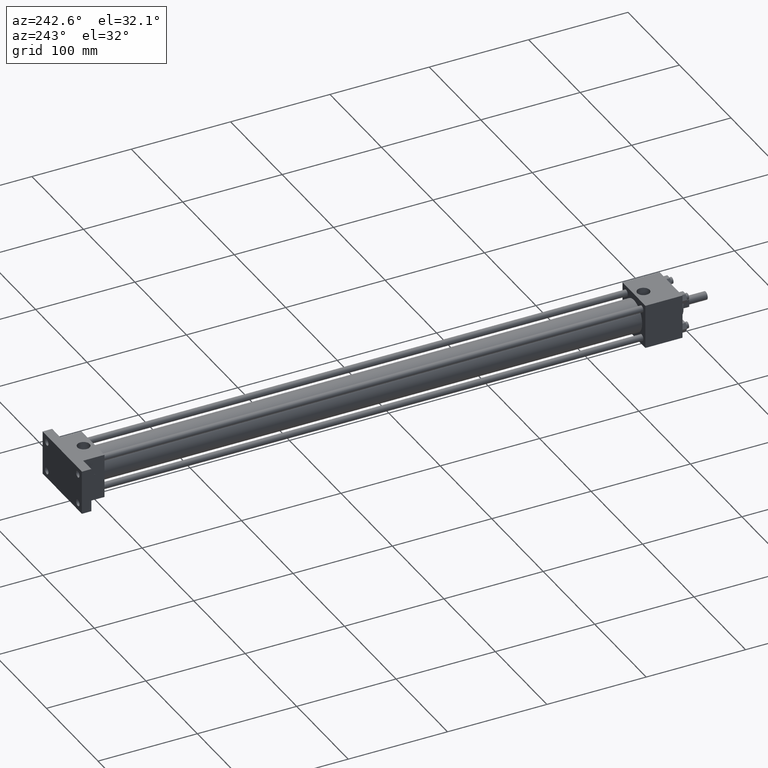
[diagram: clean part render]
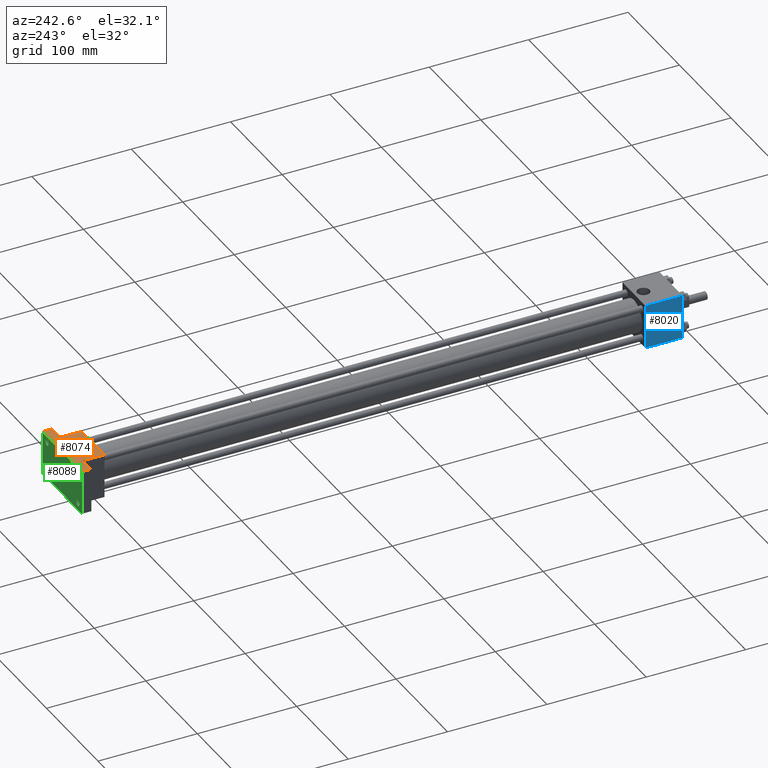
[diagram: same view with three faces highlighted in distinct colors, each labeled with its STEP entity id]
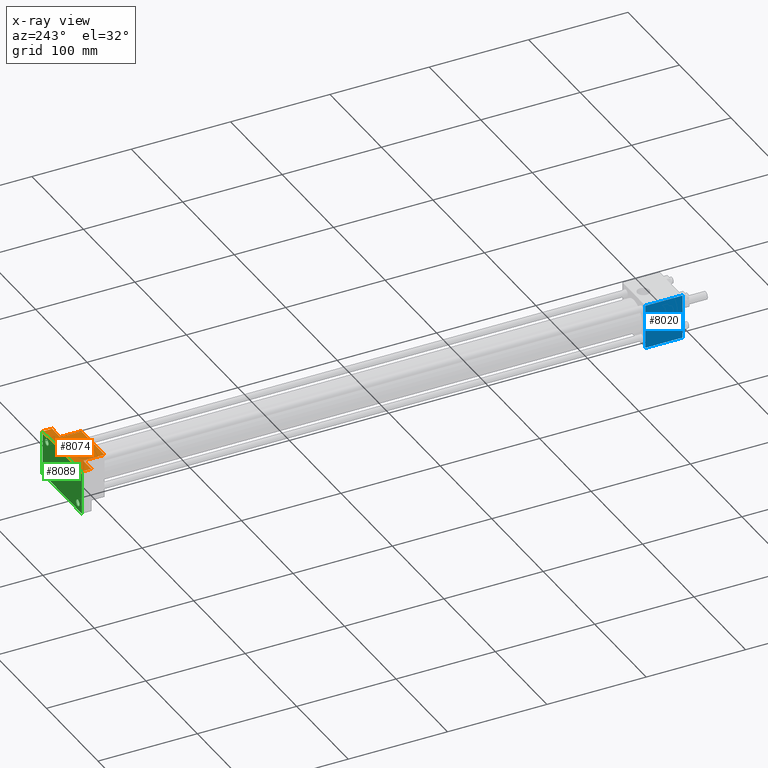
[diagram: x-ray of the same camera — body ghosted, the three highlighted faces saturated]
A machine part, auxiliary view with three faces highlighted in distinct colors.
The next image is the same camera in x-ray (body ghosted, the three faces saturated) — at least one of them is partly hidden behind the body in this view.
Their STEP definitions:

[orange] entity #8074 — the highlighted planar face has unit normal (0, 0, 1).
#3439=VERTEX_POINT('',#3440);
#3440=CARTESIAN_POINT('',(2.222500000E+001,5.976937500E+002,2.222500000E+001));
#3441=EDGE_CURVE('',#3439,#3446,#3442,.T.);
#3442=LINE('',#3443,#3444);
#3443=CARTESIAN_POINT('',(2.222500000E+001,5.976937500E+002,2.222500000E+001));
#3444=VECTOR('',#3445,1.0E+000);
#3445=DIRECTION('',(-1.0E+000,0.0E+000,0.0E+000));
#3446=VERTEX_POINT('',#3447);
#3447=CARTESIAN_POINT('',(-2.222500000E+001,5.976937500E+002,2.222500000E+001));
#3555=FACE_OUTER_BOUND('',#3557,.T.);
#3556=FACE_BOUND('',#3558,.T.);
#3557=EDGE_LOOP('',(#3559,#3560,#3561,#3562,#3563,#3564,#3565,#3566));
#3558=EDGE_LOOP('',(#3610));
#3559=ORIENTED_EDGE('',*,*,#3441,.F.);
#3560=ORIENTED_EDGE('',*,*,#3567,.F.);
#3561=ORIENTED_EDGE('',*,*,#3574,.F.);
#3562=ORIENTED_EDGE('',*,*,#3581,.F.);
#3563=ORIENTED_EDGE('',*,*,#3588,.T.);
#3564=ORIENTED_EDGE('',*,*,#3595,.T.);
#3565=ORIENTED_EDGE('',*,*,#3602,.F.);
#3566=ORIENTED_EDGE('',*,*,#3605,.T.);
#3567=EDGE_CURVE('',#3572,#3439,#3568,.T.);
#3568=LINE('',#3569,#3570);
#3569=CARTESIAN_POINT('',(2.222500000E+001,6.191250000E+002,2.222500000E+001));
#3570=VECTOR('',#3571,1.0E+000);
#3571=DIRECTION('',(0.0E+000,-1.0E+000,0.0E+000));
#3572=VERTEX_POINT('',#3573);
#3573=CARTESIAN_POINT('',(2.222500000E+001,6.191250000E+002,2.222500000E+001));
#3574=EDGE_CURVE('',#3579,#3572,#3575,.T.);
#3575=LINE('',#3576,#3577);
#3576=CARTESIAN_POINT('',(3.810000000E+001,6.191250000E+002,2.222500000E+001));
#3577=VECTOR('',#3578,1.0E+000);
#3578=DIRECTION('',(-1.0E+000,0.0E+000,0.0E+000));
#3579=VERTEX_POINT('',#3580);
#3580=CARTESIAN_POINT('',(3.810000000E+001,6.191250000E+002,2.222500000E+001));
#3581=EDGE_CURVE('',#3586,#3579,#3582,.T.);
#3582=LINE('',#3583,#3584);
#3583=CARTESIAN_POINT('',(3.810000000E+001,6.286500000E+002,2.222500000E+001));
#3584=VECTOR('',#3585,1.0E+000);
#3585=DIRECTION('',(0.0E+000,-1.0E+000,0.0E+000));
#3586=VERTEX_POINT('',#3587);
#3587=CARTESIAN_POINT('',(3.810000000E+001,6.286500000E+002,2.222500000E+001));
#3588=EDGE_CURVE('',#3586,#3593,#3589,.T.);
#3589=LINE('',#3590,#3591);
#3590=CARTESIAN_POINT('',(3.810000000E+001,6.286500000E+002,2.222500000E+001));
#3591=VECTOR('',#3592,1.0E+000);
#3592=DIRECTION('',(-1.0E+000,0.0E+000,0.0E+000));
#3593=VERTEX_POINT('',#3594);
#3594=CARTESIAN_POINT('',(-3.810000000E+001,6.286500000E+002,2.222500000E+001));
#3595=EDGE_CURVE('',#3593,#3600,#3596,.T.);
#3596=LINE('',#3597,#3598);
#3597=CARTESIAN_POINT('',(-3.810000000E+001,6.286500000E+002,2.222500000E+001));
#3598=VECTOR('',#3599,1.0E+000);
#3599=DIRECTION('',(0.0E+000,-1.0E+000,0.0E+000));
#3600=VERTEX_POINT('',#3601);
#3601=CARTESIAN_POINT('',(-3.810000000E+001,6.191250000E+002,2.222500000E+001));
#3602=EDGE_CURVE('',#3603,#3600,#3575,.T.);
#3603=VERTEX_POINT('',#3604);
#3604=CARTESIAN_POINT('',(-2.222500000E+001,6.191250000E+002,2.222500000E+001));
#3605=EDGE_CURVE('',#3603,#3446,#3606,.T.);
#3606=LINE('',#3607,#3608);
#3607=CARTESIAN_POINT('',(-2.222500000E+001,6.191250000E+002,2.222500000E+001));
#3608=VECTOR('',#3609,1.0E+000);
#3609=DIRECTION('',(0.0E+000,-1.0E+000,0.0E+000));
#3610=ORIENTED_EDGE('',*,*,#3611,.T.);
#3611=EDGE_CURVE('',#3617,#3617,#3612,.T.);
#3612=CIRCLE('',#3613,6.243320000E+000);
#3613=AXIS2_PLACEMENT_3D('',#3614,#3615,#3616);
#3614=CARTESIAN_POINT('',(0.000000000E+000,6.072187500E+002,2.222500000E+001));
#3615=DIRECTION('',(0.0E+000,0.0E+000,-1.0E+000));
#3616=DIRECTION('',(1.0E+000,0.0E+000,0.0E+000));
#3617=VERTEX_POINT('',#3618);
#3618=CARTESIAN_POINT('',(6.243320000E+000,6.072187500E+002,2.222500000E+001));
#3619=PLANE('',#3620);
#3620=AXIS2_PLACEMENT_3D('',#3621,#3622,#3623);
#3621=CARTESIAN_POINT('',(2.222500000E+001,6.191250000E+002,2.222500000E+001));
#3622=DIRECTION('',(0.0E+000,0.0E+000,1.0E+000));
#3623=DIRECTION('',(1.0E+000,0.0E+000,0.0E+000));
#8074=ADVANCED_FACE('',(#3555,#3556),#3619,.T.);

[blue] entity #8020 — the highlighted planar face has unit normal (-1, 0, 0).
#485=VERTEX_POINT('',#487);
#487=CARTESIAN_POINT('',(-2.222500000E+001,5.318125000E+001,-2.222500000E+001));
#489=EDGE_CURVE('',#494,#485,#490,.T.);
#490=LINE('',#491,#492);
#491=CARTESIAN_POINT('',(-2.222500000E+001,5.318125000E+001,2.222500000E+001));
#492=VECTOR('',#493,1.0E+000);
#493=DIRECTION('',(0.0E+000,0.0E+000,-1.0E+000));
#494=VERTEX_POINT('',#495);
#495=CARTESIAN_POINT('',(-2.222500000E+001,5.318125000E+001,2.222500000E+001));
#569=VERTEX_POINT('',#570);
#570=CARTESIAN_POINT('',(-2.222500000E+001,1.587500000E+001,-2.222500000E+001));
#571=EDGE_CURVE('',#485,#569,#572,.T.);
#572=LINE('',#573,#574);
#573=CARTESIAN_POINT('',(-2.222500000E+001,5.318125000E+001,-2.222500000E+001));
#574=VECTOR('',#575,1.0E+000);
#575=DIRECTION('',(0.0E+000,-1.0E+000,0.0E+000));
#598=EDGE_CURVE('',#494,#603,#599,.T.);
#599=LINE('',#600,#601);
#600=CARTESIAN_POINT('',(-2.222500000E+001,5.318125000E+001,2.222500000E+001));
#601=VECTOR('',#602,1.0E+000);
#602=DIRECTION('',(0.0E+000,-1.0E+000,0.0E+000));
#603=VERTEX_POINT('',#604);
#604=CARTESIAN_POINT('',(-2.222500000E+001,1.587500000E+001,2.222500000E+001));
#631=FACE_OUTER_BOUND('',#633,.T.);
#632=FACE_BOUND('',#634,.T.);
#633=EDGE_LOOP('',(#635,#636,#637,#638));
#634=EDGE_LOOP('',(#644));
#635=ORIENTED_EDGE('',*,*,#489,.T.);
#636=ORIENTED_EDGE('',*,*,#571,.T.);
#637=ORIENTED_EDGE('',*,*,#639,.F.);
#638=ORIENTED_EDGE('',*,*,#598,.F.);
#639=EDGE_CURVE('',#603,#569,#640,.T.);
#640=LINE('',#641,#642);
#641=CARTESIAN_POINT('',(-2.222500000E+001,1.587500000E+001,2.222500000E+001));
#642=VECTOR('',#643,1.0E+000);
#643=DIRECTION('',(0.0E+000,0.0E+000,-1.0E+000));
#644=ORIENTED_EDGE('',*,*,#645,.T.);
#645=EDGE_CURVE('',#651,#651,#646,.T.);
#646=CIRCLE('',#647,2.778125000E+000);
#647=AXIS2_PLACEMENT_3D('',#648,#649,#650);
#648=CARTESIAN_POINT('',(-2.222500000E+001,4.524375000E+001,6.350000000E+000));
#649=DIRECTION('',(1.0E+000,0.0E+000,0.0E+000));
#650=DIRECTION('',(0.0E+000,-1.0E+000,0.0E+000));
#651=VERTEX_POINT('',#652);
#652=CARTESIAN_POINT('',(-2.222500000E+001,4.246562500E+001,6.350000000E+000));
#653=PLANE('',#654);
#654=AXIS2_PLACEMENT_3D('',#655,#656,#657);
#655=CARTESIAN_POINT('',(-2.222500000E+001,5.318125000E+001,2.222500000E+001));
#656=DIRECTION('',(-1.0E+000,0.0E+000,0.0E+000));
#657=DIRECTION('',(0.0E+000,0.0E+000,1.0E+000));
#8020=ADVANCED_FACE('',(#631,#632),#653,.T.);

[green] entity #8089 — the highlighted planar face has unit normal (0, -1, 0).
#3517=VERTEX_POINT('',#3518);
#3518=CARTESIAN_POINT('',(-3.810000000E+001,6.286500000E+002,-2.222500000E+001));
#3519=EDGE_CURVE('',#3517,#3524,#3520,.T.);
#3520=LINE('',#3521,#3522);
#3521=CARTESIAN_POINT('',(-3.810000000E+001,6.286500000E+002,-2.222500000E+001));
#3522=VECTOR('',#3523,1.0E+000);
#3523=DIRECTION('',(1.0E+000,0.0E+000,0.0E+000));
#3524=VERTEX_POINT('',#3525);
#3525=CARTESIAN_POINT('',(3.810000000E+001,6.286500000E+002,-2.222500000E+001));
#3586=VERTEX_POINT('',#3587);
#3587=CARTESIAN_POINT('',(3.810000000E+001,6.286500000E+002,2.222500000E+001));
#3588=EDGE_CURVE('',#3586,#3593,#3589,.T.);
#3589=LINE('',#3590,#3591);
#3590=CARTESIAN_POINT('',(3.810000000E+001,6.286500000E+002,2.222500000E+001));
#3591=VECTOR('',#3592,1.0E+000);
#3592=DIRECTION('',(-1.0E+000,0.0E+000,0.0E+000));
#3593=VERTEX_POINT('',#3594);
#3594=CARTESIAN_POINT('',(-3.810000000E+001,6.286500000E+002,2.222500000E+001));
#3907=EDGE_CURVE('',#3524,#3586,#3908,.T.);
#3908=LINE('',#3909,#3910);
#3909=CARTESIAN_POINT('',(3.810000000E+001,6.286500000E+002,-2.222500000E+001));
#3910=VECTOR('',#3911,1.0E+000);
#3911=DIRECTION('',(0.0E+000,0.0E+000,1.0E+000));
#3923=EDGE_CURVE('',#3593,#3517,#3924,.T.);
#3924=LINE('',#3925,#3926);
#3925=CARTESIAN_POINT('',(-3.810000000E+001,6.286500000E+002,2.222500000E+001));
#3926=VECTOR('',#3927,1.0E+000);
#3927=DIRECTION('',(0.0E+000,0.0E+000,-1.0E+000));
#3933=FACE_OUTER_BOUND('',#3938,.T.);
#3934=FACE_BOUND('',#3939,.T.);
#3935=FACE_BOUND('',#3940,.T.);
#3936=FACE_BOUND('',#3941,.T.);
#3937=FACE_BOUND('',#3942,.T.);
#3938=EDGE_LOOP('',(#3943));
#3939=EDGE_LOOP('',(#3952));
#3940=EDGE_LOOP('',(#3961));
#3941=EDGE_LOOP('',(#3970));
#3942=EDGE_LOOP('',(#3979,#3980,#3981,#3982));
#3943=ORIENTED_EDGE('',*,*,#3944,.T.);
#3944=EDGE_CURVE('',#3950,#3950,#3945,.T.);
#3945=CIRCLE('',#3946,3.175000000E+000);
#3946=AXIS2_PLACEMENT_3D('',#3947,#3948,#3949);
#3947=CARTESIAN_POINT('',(-3.016250000E+001,6.286500000E+002,1.511300000E+001));
#3948=DIRECTION('',(0.0E+000,-1.0E+000,0.0E+000));
#3949=DIRECTION('',(0.0E+000,0.0E+000,-1.0E+000));
#3950=VERTEX_POINT('',#3951);
#3951=CARTESIAN_POINT('',(-3.016250000E+001,6.286500000E+002,1.193800000E+001));
#3952=ORIENTED_EDGE('',*,*,#3953,.T.);
#3953=EDGE_CURVE('',#3959,#3959,#3954,.T.);
#3954=CIRCLE('',#3955,3.175000000E+000);
#3955=AXIS2_PLACEMENT_3D('',#3956,#3957,#3958);
#3956=CARTESIAN_POINT('',(3.016250000E+001,6.286500000E+002,1.511300000E+001));
#3957=DIRECTION('',(0.0E+000,-1.0E+000,0.0E+000));
#3958=DIRECTION('',(0.0E+000,0.0E+000,-1.0E+000));
#3959=VERTEX_POINT('',#3960);
#3960=CARTESIAN_POINT('',(3.016250000E+001,6.286500000E+002,1.193800000E+001));
#3961=ORIENTED_EDGE('',*,*,#3962,.T.);
#3962=EDGE_CURVE('',#3968,#3968,#3963,.T.);
#3963=CIRCLE('',#3964,3.175000000E+000);
#3964=AXIS2_PLACEMENT_3D('',#3965,#3966,#3967);
#3965=CARTESIAN_POINT('',(3.016250000E+001,6.286500000E+002,-1.511300000E+001));
#3966=DIRECTION('',(0.0E+000,-1.0E+000,0.0E+000));
#3967=DIRECTION('',(0.0E+000,0.0E+000,-1.0E+000));
#3968=VERTEX_POINT('',#3969);
#3969=CARTESIAN_POINT('',(3.016250000E+001,6.286500000E+002,-1.828800000E+001));
#3970=ORIENTED_EDGE('',*,*,#3971,.T.);
#3971=EDGE_CURVE('',#3977,#3977,#3972,.T.);
#3972=CIRCLE('',#3973,3.175000000E+000);
#3973=AXIS2_PLACEMENT_3D('',#3974,#3975,#3976);
#3974=CARTESIAN_POINT('',(-3.016250000E+001,6.286500000E+002,-1.511300000E+001));
#3975=DIRECTION('',(0.0E+000,-1.0E+000,0.0E+000));
#3976=DIRECTION('',(0.0E+000,0.0E+000,-1.0E+000));
#3977=VERTEX_POINT('',#3978);
#3978=CARTESIAN_POINT('',(-3.016250000E+001,6.286500000E+002,-1.828800000E+001));
#3979=ORIENTED_EDGE('',*,*,#3519,.F.);
#3980=ORIENTED_EDGE('',*,*,#3923,.F.);
#3981=ORIENTED_EDGE('',*,*,#3588,.F.);
#3982=ORIENTED_EDGE('',*,*,#3907,.F.);
#3983=PLANE('',#3984);
#3984=AXIS2_PLACEMENT_3D('',#3985,#3986,#3987);
#3985=CARTESIAN_POINT('',(3.810000000E+001,6.286500000E+002,-2.222500000E+001));
#3986=DIRECTION('',(0.0E+000,-1.0E+000,0.0E+000));
#3987=DIRECTION('',(0.0E+000,0.0E+000,-1.0E+000));
#8089=ADVANCED_FACE('',(#3933,#3934,#3935,#3936,#3937),#3983,.F.);